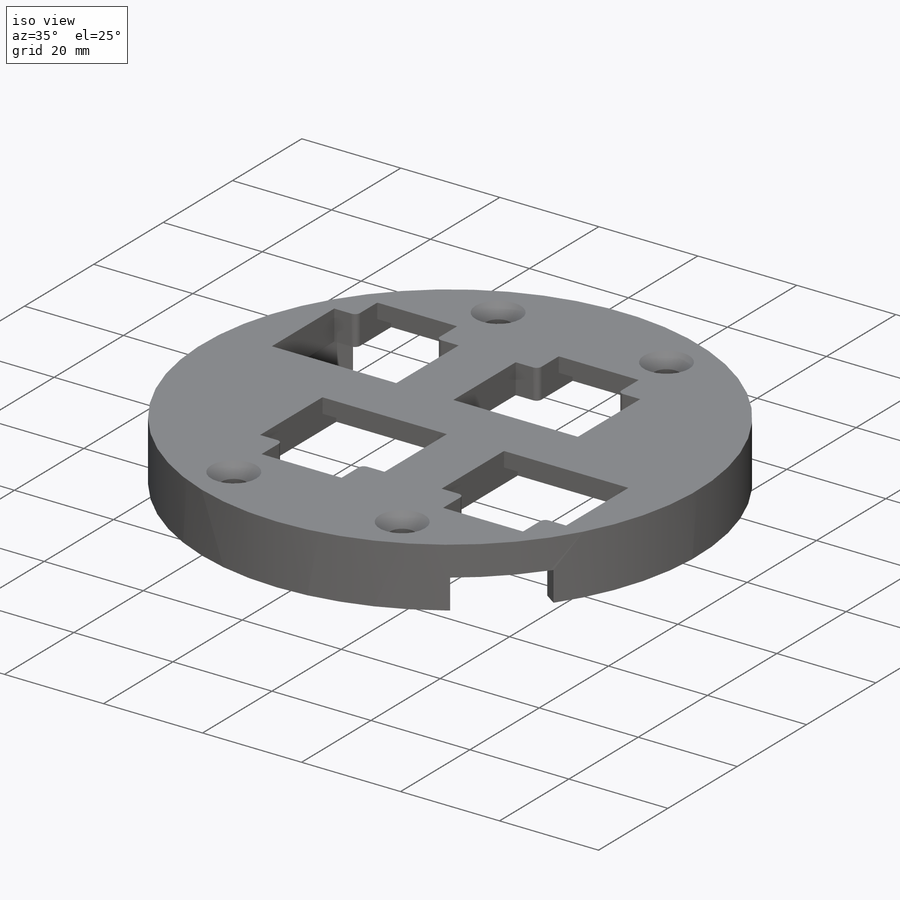
[diagram: iso view]
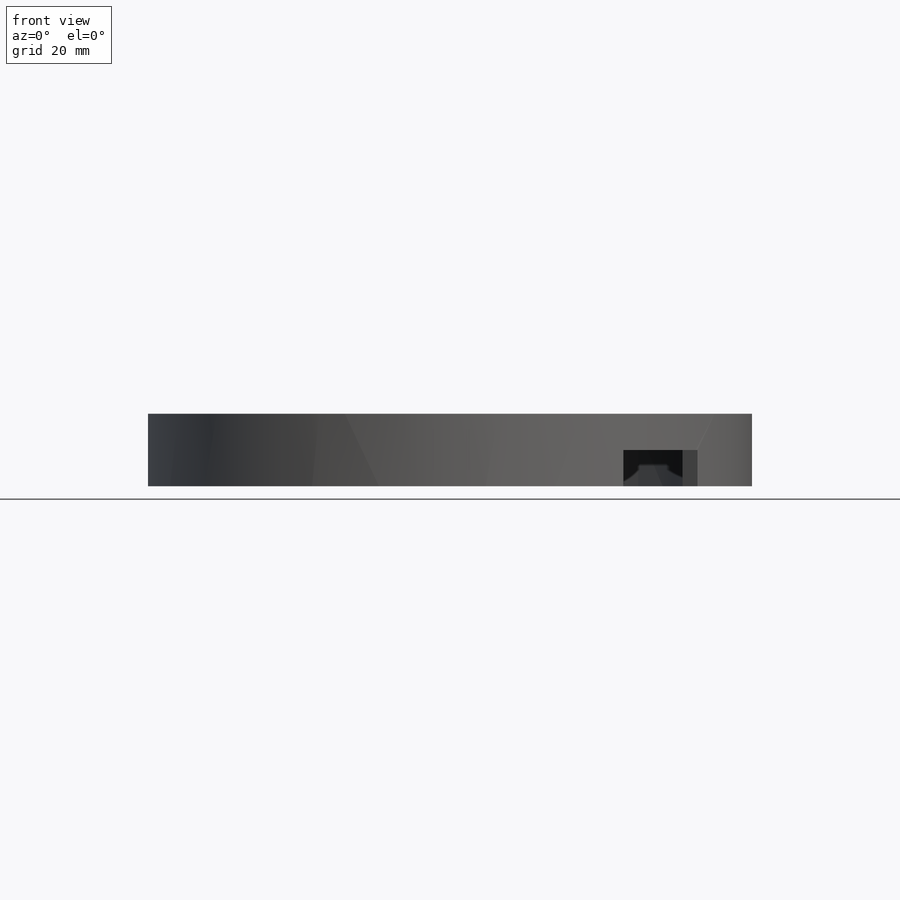
[diagram: front view]
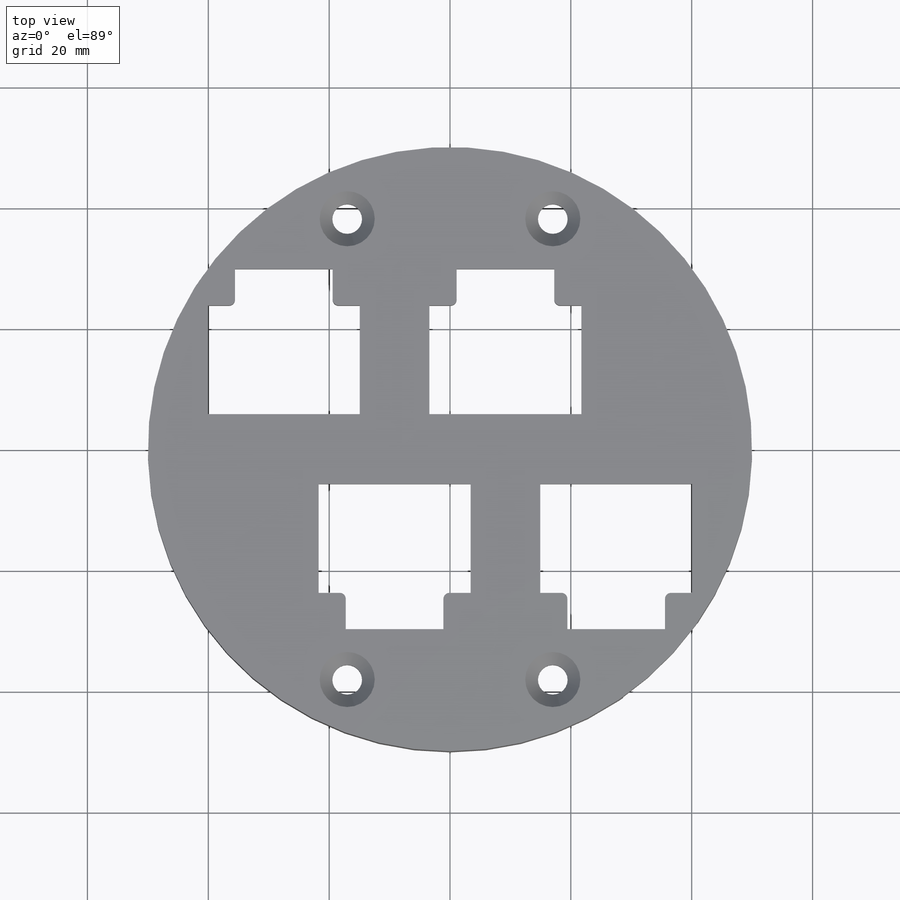
[diagram: top view]
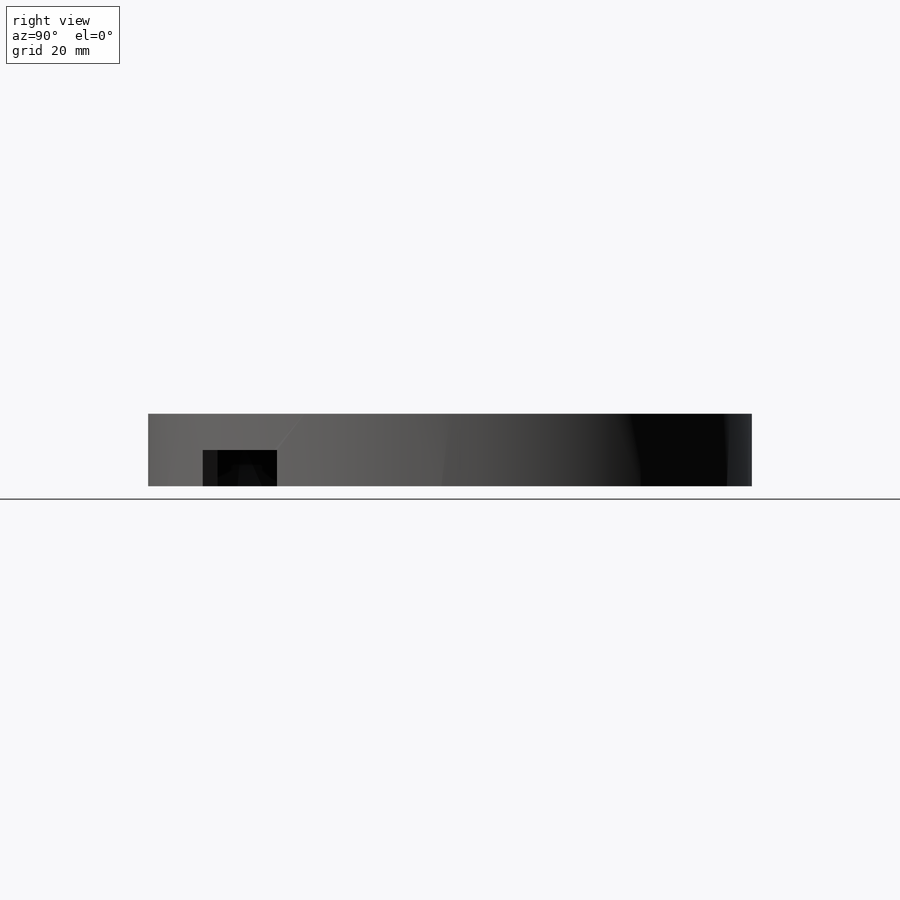
[diagram: right view]
SOLIDWORKS PART (.sldprt)
format: sldprt  version: not decoded by parser v0  size: 561,664 bytes
history: native  units: mm
features: sketch x7, cut_extrude x3, extrude x2, material x1, hole x1, fillet x1 + 2 further entries (+22 scaffold rows collapsed; 6 parser-record rows omitted)
feature tree (45):
  scaffold x22  (default folders/planes/origin — collapsed)
  material  "ABS"
  "a_base_t"
  parser-record x6  (decoder bookkeeping rows leaked as tree rows — omitted from the tree; the rows remain in map.json)
  "params_finger_t"
  sketch  "Sketch2"  dims[D1=3.0mm]
  extrude  "Outer Ring"  Depth=12mm
  sketch  "Sketch3"  dims[c1.D1=~22.650931mm c1.D2=~11.393561mm c2.D1=1.5mm c2.D2=22.75mm c2.D3=25.0mm c3.D2=25.15mm c3.D3=22.75mm c3.D4=14.925mm c3.D5=16.15mm c3.D6=6.25mm c4.D4=18.0mm c4.D3=~14.78575mm]
  cut_extrude  "Finger Base Through Holes"  [1 undecoded]
  sketch  "Sketch4"  dims[c1.D1=~7.888393mm c1.D2=~3.124271mm c1.D4=47.0mm c1.D12=~20.695355mm c1.D13=47.0mm c1.D14=47.0mm c1.D15=47.0mm c1.D16=47.0mm c2.D1=1.5mm c2.D2=4.0mm c2.D3=4.0mm c2.D4=~2.971011mm c2.D5=~35.385257mm c3.D4=2.0mm c3.D5=4.0mm c3.D1=~2.601987mm c3.D6=~60.711419mm c4.D1=4.0mm c4.D6=32.25mm c4.D7=~2.753605mm c4.D5=4.0mm c5.D1=4.0mm c5.D3=4.0mm c5.D6=3.0mm c5.D7=32.25mm c5.D8=~3.462484mm c6.D7=3.0mm c6.D8=32.25mm c6.D9=~1.28091mm c7.D8=3.0mm c7.D9=32.25mm c7.D10=~2.643922mm c8.D9=3.0mm c8.D10=32.25mm c8.D11=~1.403521mm c9.D10=3.0mm c9.D11=32.25mm c9.D12=~2.226405mm c10.D11=3.0mm c10.D4=2.0mm c10.D5=4.0mm c10.D12=10.25mm c10.D13=5.0mm c11.D12=10.25mm c11.D13=5.0mm c12.D12=10.25mm c12.D13=5.0mm c13.D12=10.25mm c13.D13=5.0mm c14.D12=10.25mm c14.D13=5.0mm c15.D12=~5.866655mm c15.D13=~5.068118mm c16.D12=~9.03539mm c16.D13=~6.511116mm c17.D12=3.0mm c17.D13=~9.079307mm c17.D14=~7.066658mm c18.D13=3.0mm c18.D14=~8.837574mm c18.D15=~4.658128mm c19.D14=3.0mm c19.D15=~9.079307mm c19.D16=~5.606916mm c20.D15=3.0mm c20.D12=10.25mm c20.D13=5.0mm]
  extrude  "Ring Extrude"  Depth=3mm
  sketch  "Sketch6"  dims[c1.D1=4.0mm c1.D2=~7.900787mm c2.D1=4.0mm c2.D2=~9.664143mm c3.D1=~5.34545mm c3.D2=~2.307951mm]
  cut_extrude  "Allowance Cut 1"  [1 undecoded]
  sketch  "Sketch7"  dims[c1.D3=47.0mm c1.D1=~35.355339mm c2.D1=45.0deg c2.D2=50.0mm c3.D2=20.0deg c4.D2=~45.315389mm c5.D2=20.0deg c5.D3=~32.806411mm]
  cut_extrude  "Allowance Cut 2"  [1 undecoded]
  hole  "CSK for #8 Flat Head Socket Cap Screw1"  Diameter=4.9149mm Depth=12mm
  sketch  "Sketch10"
  sketch  "Sketch9"  dims[hole-wizard template sketch: 54 standard entries collapsed; hole parameters kept: c17.Thru Hole Dia.=4.9149mm c17.Thru Hole Depth=12.0mm c17.Near C'Sink Dia.=9.1186mm c17.D4=~3.666174mm c17.Near C'Sink Angle=82.0deg]
  fillet  "Clearance Contouring"  Radius=1mm
decode coverage: 10 of 14 modeling features carry decoded parameters; 2 rows unclassified (native names shown)
note: ~ marks probable driven/reference dimensions
note: 3 parameter values undecoded
summary: no parameter record found for 3 features
note: suppression state not decoded; provenance and decode notes live in map.json
